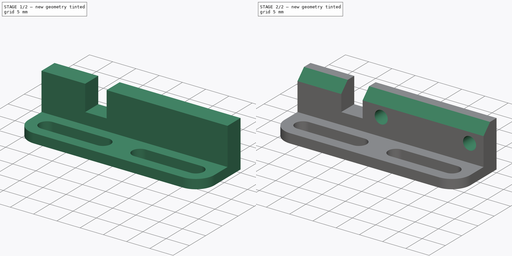
[diagram: build sequence overview — one tinted view per stage of 2, left to right]
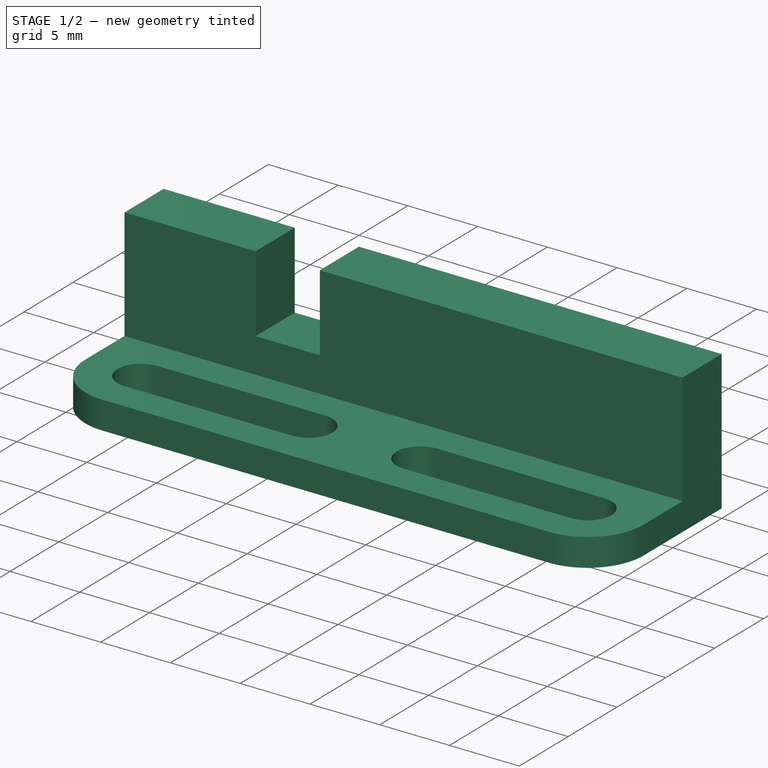
[diagram: stage 1 of 2 — iso view after this stage's code; geometry added in this stage tinted green]
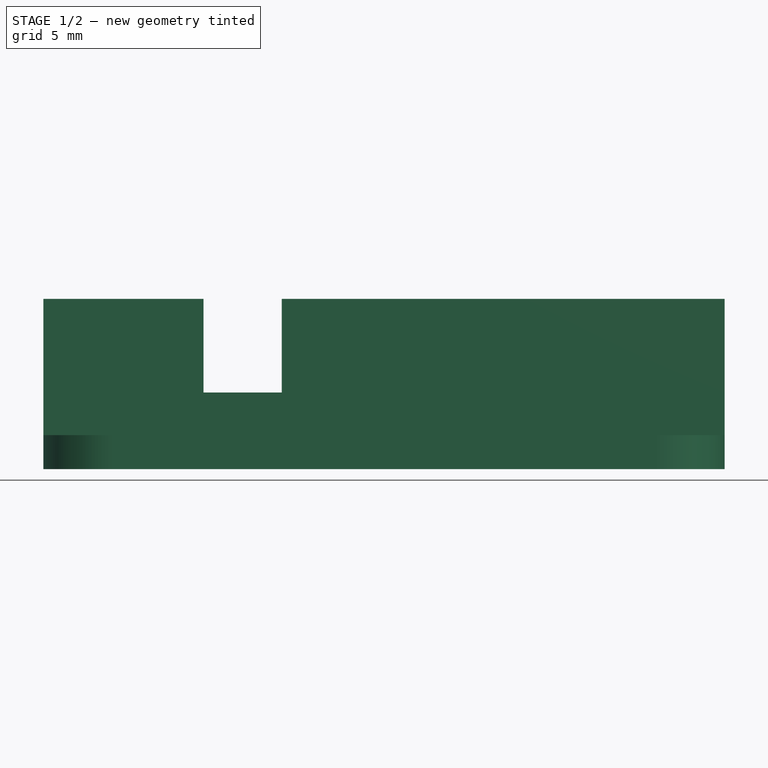
[diagram: stage 1 of 2 — front view after this stage's code; geometry added in this stage tinted green]
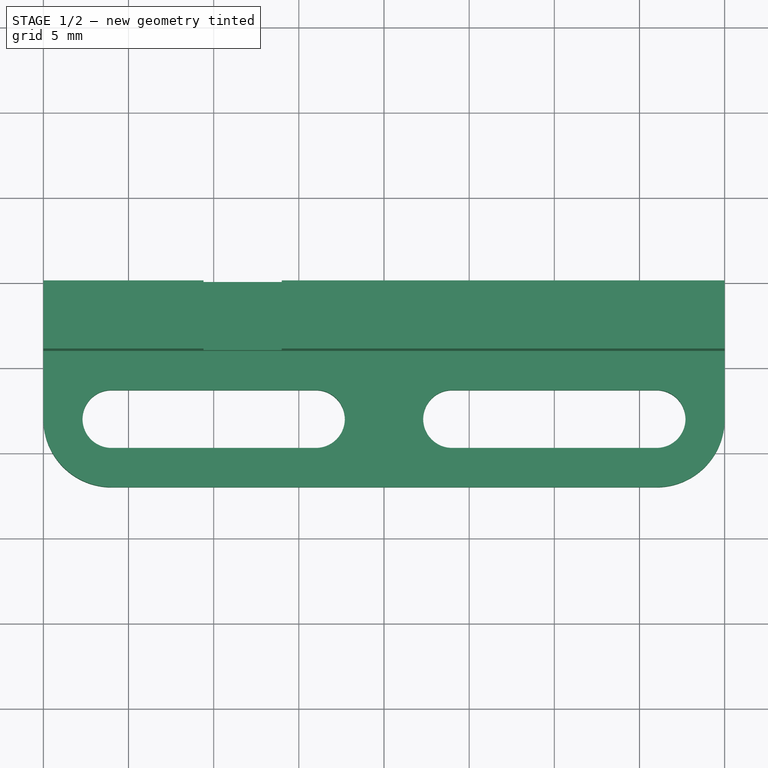
[diagram: stage 1 of 2 — top view after this stage's code; geometry added in this stage tinted green]
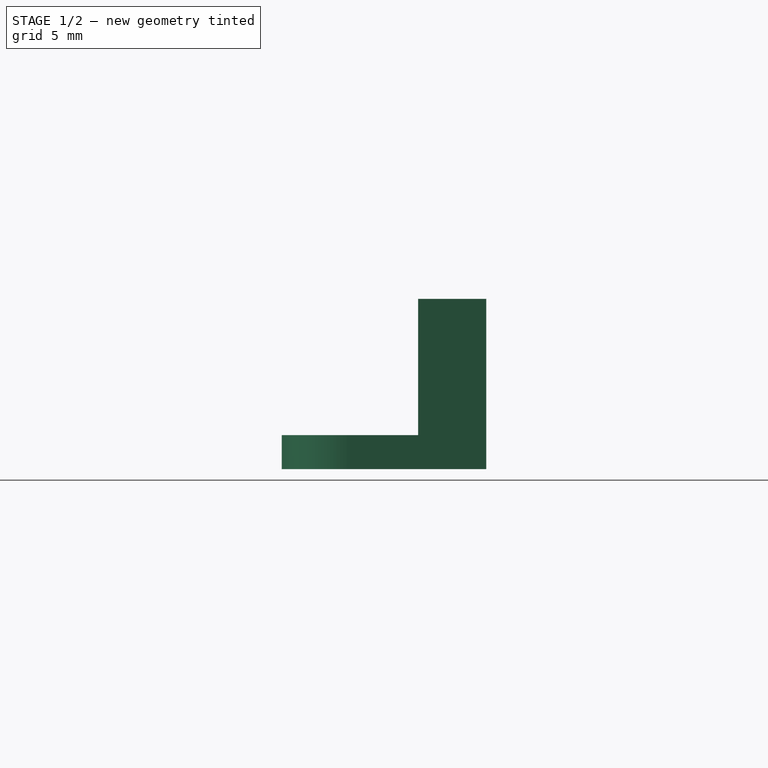
[diagram: stage 1 of 2 — right view after this stage's code; geometry added in this stage tinted green]
FCSTD DOCUMENT  (FreeCAD 0.18.1R)
Label: Endstop Mount
License: All rights reserved
LicenseURL: http://en.wikipedia.org/wiki/All_rights_reserved
objects: Sketcher::SketchObject×3, PartDesign::Pad×2, PartDesign::Pocket×1, PartDesign::Chamfer×1, PartDesign::Body×1, Spreadsheet::Sheet×1
note: 11 computed .brp shape members not serialized (recipe doc carries the construction recipe); baked Part::Feature solids carry a one-line shape summary decoded from their .brp

FEATURE [Sketcher::SketchObject] Sketch  label="Sketch Plate"
  MapMode = 5
  Support = -> [XY_Plane]
  expr: Constraints[28] = Screws.m3tD
  sketch-geometry (14):
    g0: LineSegment StartX=9.5e-14 StartY=-8 StartZ=0 EndX=0 EndY=0 EndZ=0
    g1: LineSegment StartX=0 StartY=0 StartZ=0 EndX=40 EndY=0 EndZ=0
    g2: LineSegment StartX=40 StartY=0 StartZ=0 EndX=40 EndY=-8 EndZ=0
    g3: LineSegment StartX=4 StartY=-12 StartZ=0 EndX=36 EndY=-12 EndZ=0
    g4: ArcOfCircle CenterX=4 CenterY=-8 CenterZ=0 NormalX=0 NormalY=0 NormalZ=1 AngleXU=0 Radius=4 StartAngle=3.14159 EndAngle=4.71239
    g5: ArcOfCircle CenterX=36 CenterY=-8 CenterZ=0 NormalX=0 NormalY=0 NormalZ=1 AngleXU=0 Radius=4 StartAngle=4.71239 EndAngle=6.28319
    g6: ArcOfCircle CenterX=4 CenterY=-8 CenterZ=0 NormalX=0 NormalY=0 NormalZ=1 AngleXU=0 Radius=1.7 StartAngle=1.5708 EndAngle=4.71239
    g7: ArcOfCircle CenterX=16 CenterY=-8 CenterZ=0 NormalX=0 NormalY=0 NormalZ=1 AngleXU=0 Radius=1.7 StartAngle=4.71239 EndAngle=7.85398
    g8: LineSegment StartX=4 StartY=-9.7 StartZ=0 EndX=16 EndY=-9.7 EndZ=0
    g9: LineSegment StartX=4 StartY=-6.3 StartZ=0 EndX=16 EndY=-6.3 EndZ=0
    g10: ArcOfCircle CenterX=36 CenterY=-8 CenterZ=0 NormalX=0 NormalY=0 NormalZ=1 AngleXU=0 Radius=1.7 StartAngle=4.71239 EndAngle=7.85398
    g11: ArcOfCircle CenterX=24 CenterY=-8 CenterZ=0 NormalX=0 NormalY=0 NormalZ=1 AngleXU=0 Radius=1.7 StartAngle=1.5708 EndAngle=4.71239
    g12: LineSegment StartX=36 StartY=-6.3 StartZ=0 EndX=24 EndY=-6.3 EndZ=0
    g13: LineSegment StartX=36 StartY=-9.7 StartZ=0 EndX=24 EndY=-9.7 EndZ=0
  constraints (34):
    c: PointOnObject(g0,g-2)
    c: Coincident(g0,g-1)
    c: Coincident(g0,g1)
    c: PointOnObject(g1,g-1)
    c: Coincident(g1,g2)
    c: Vertical(g2)
    c: Horizontal(g3)
    c: Tangent(g4,g0) = 1.5708
    c: Tangent(g4,g3) = -1.5708
    c: Tangent(g5,g3) = -1.5708
    c: Tangent(g5,g2) = 1.5708
    c: Equal(g4,g5)
    c: Tangent(g6,g9) = 1.5708
    c: Tangent(g6,g8) = -1.5708
    c: Tangent(g8,g7) = -1.5708
    c: Tangent(g9,g7) = 1.5708
    c: Horizontal(g8)
    c: Equal(g6,g7)
    c: Coincident(g6,g4)
    c: Tangent(g10,g13) = 1.5708
    c: Tangent(g10,g12) = -1.5708
    c: Tangent(g12,g11) = -1.5708
    c: Tangent(g13,g11) = 1.5708
    c: Horizontal(g12)
    c: Equal(g10,g11)
    c: Coincident(g10,g5)
    c: Equal(g7,g11)
    c: Equal(g9,g12)
    c: Diameter(g6) = 3.4
    c: Radius(g4) = 4
    c: DistanceY(g4,g0) = 8
    c: Distance(g4,g11) = 20
    c: Distance(g13) = 12
    c: Distance(g1) = 40
FEATURE [PartDesign::Pad] Pad  label="Plate"
  Length = 2
  Length2 = 100
  Profile = -> Sketch
  Type = 0
FEATURE [Sketcher::SketchObject] Sketch001  label="Sketch Mount Pad"
  ExternalGeometry = -> [Pad]
  MapMode = 5
  Placement = pos=(0,0,0) rot=(0,0.707107,0.707107;3.14159rad)
  Support = -> [Pad]
  sketch-geometry (8):
    g0: LineSegment StartX=0 StartY=2 StartZ=0 EndX=-40 EndY=2 EndZ=0
    g1: LineSegment StartX=-40 StartY=2 StartZ=0 EndX=-40 EndY=10 EndZ=0
    g2: LineSegment StartX=-40 StartY=10 StartZ=0 EndX=-14 EndY=10 EndZ=0
    g3: LineSegment StartX=-14 StartY=10 StartZ=0 EndX=-14 EndY=4.5 EndZ=0
    g4: LineSegment StartX=-14 StartY=4.5 StartZ=0 EndX=-9.4 EndY=4.5 EndZ=0
    g5: LineSegment StartX=-9.4 StartY=4.5 StartZ=0 EndX=-9.4 EndY=10 EndZ=0
    g6: LineSegment StartX=-9.4 StartY=10 StartZ=0 EndX=0 EndY=10 EndZ=0
    g7: LineSegment StartX=0 StartY=10 StartZ=0 EndX=0 EndY=2 EndZ=0
  constraints (22):
    c: Coincident(g-3,g0)
    c: Coincident(g0,g-3)
    c: Coincident(g0,g1)
    c: Vertical(g1)
    c: Coincident(g1,g2)
    c: Horizontal(g2)
    c: Coincident(g2,g3)
    c: Vertical(g3)
    c: Coincident(g3,g4)
    c: Horizontal(g4)
    c: Coincident(g4,g5)
    c: Vertical(g5)
    c: Coincident(g5,g6)
    c: PointOnObject(g6,g-2)
    c: Horizontal(g6)
    c: Coincident(g6,g7)
    c: Coincident(g7,g0)
    c: Horizontal(g5,g2)
    c: Distance(g6) = 9.4
    c: Distance(g2) = 26
    c: Distance(g7) = 8
    c: Distance(g4,g0) = 2.5
FEATURE [PartDesign::Pad] Pad001  label="Mount Pad"
  BaseFeature = -> Pad
  Length = 4
  Length2 = 100
  Profile = -> Sketch001
  Reversed = true
  Type = 0
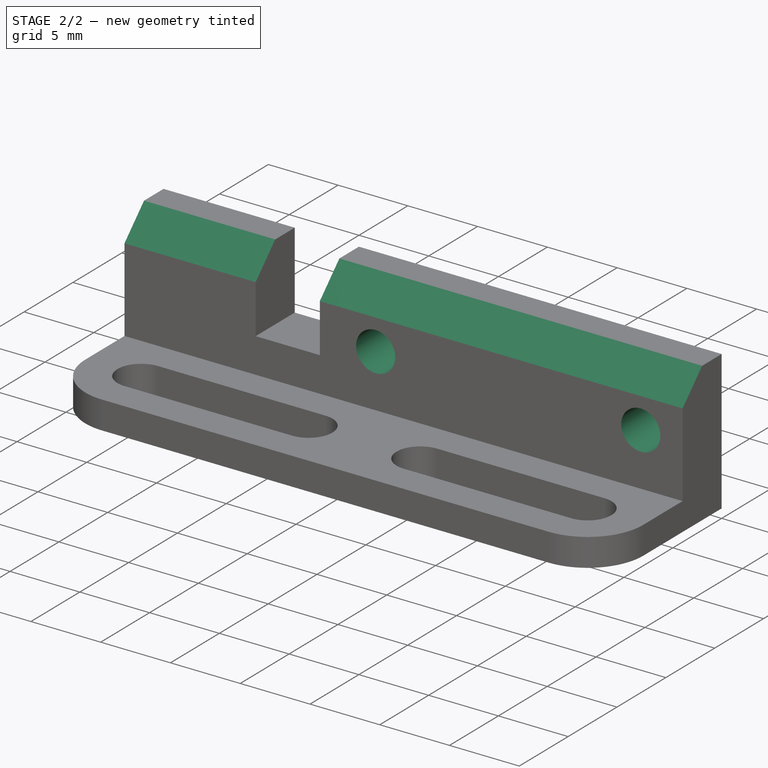
[diagram: stage 2 of 2 — iso view after this stage's code; geometry added in this stage tinted green]
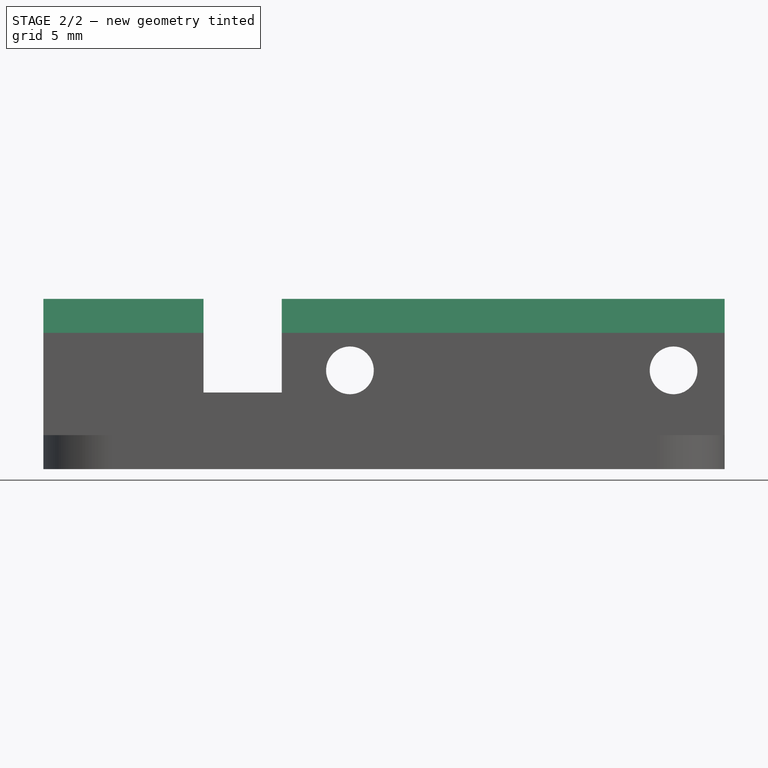
[diagram: stage 2 of 2 — front view after this stage's code; geometry added in this stage tinted green]
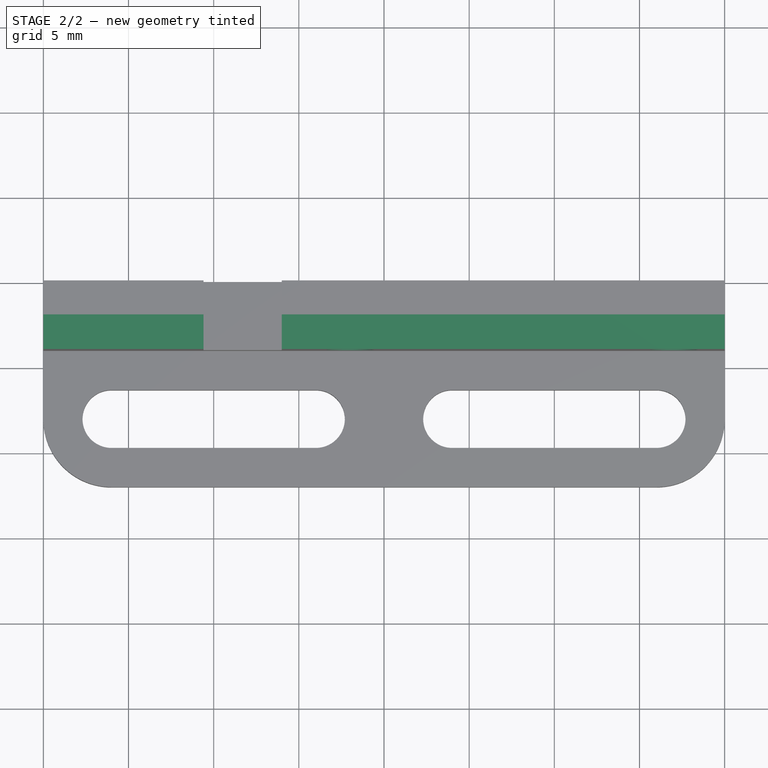
[diagram: stage 2 of 2 — top view after this stage's code; geometry added in this stage tinted green]
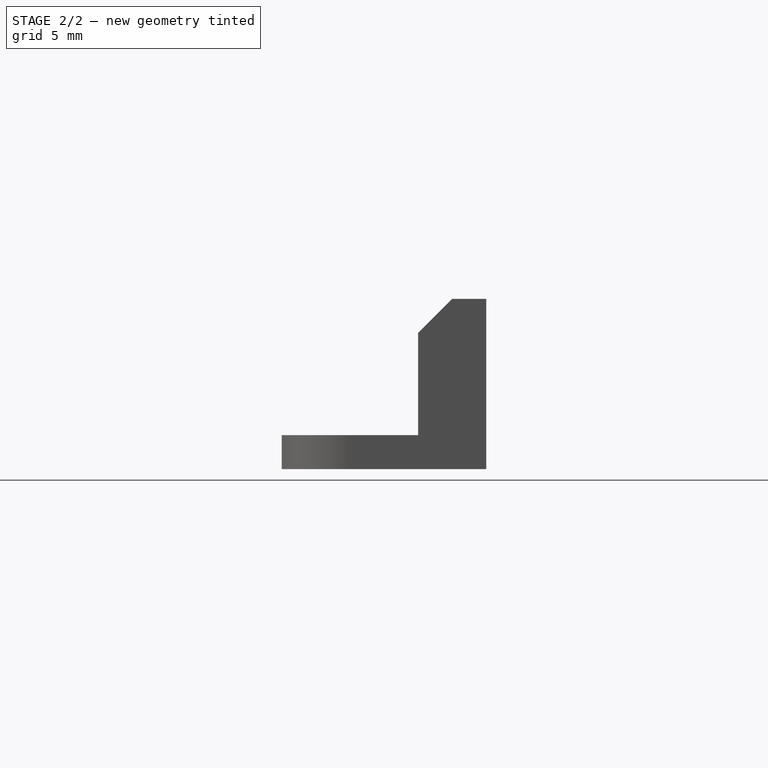
[diagram: stage 2 of 2 — right view after this stage's code; geometry added in this stage tinted green]
FEATURE [Sketcher::SketchObject] Sketch002  label="Sketch Mount Holes"
  ExternalGeometry = -> [Pad001]
  MapMode = 5
  Placement = pos=(0,0,0) rot=(0,0.707107,0.707107;3.14159rad)
  Support = -> [Pad001]
  expr: Constraints[4] = Screws.m3d
  sketch-geometry (2):
    g0: Circle CenterX=-37 CenterY=5.8 CenterZ=0 NormalX=0 NormalY=0 NormalZ=1 AngleXU=0 Radius=1.4
    g1: Circle CenterX=-18 CenterY=5.8 CenterZ=0 NormalX=0 NormalY=0 NormalZ=1 AngleXU=0 Radius=1.4
  constraints (6):
    c: Horizontal(g0,g1)
    c: Equal(g0,g1)
    c: Distance(g0,g1) = 19
    c: Distance(g0,g-3) = 3
    c: Diameter(g0) = 2.8
    c: DistanceY(g-3,g0) = 3.8
FEATURE [PartDesign::Pocket] Pocket  label="Mount Holes"
  BaseFeature = -> Pad001
  Length = 5
  Length2 = 100
  Profile = -> Sketch002
  Type = 0
FEATURE [PartDesign::Chamfer] Chamfer
  Base = -> Pocket [Edge50,Edge51]
  BaseFeature = -> Pocket
  Size = 2
FEATURE [PartDesign::Body] Body  label="Endstop Mount"
  Group = -> [Sketch,Pad,Sketch001,Pad001,Sketch002,Pocket,Chamfer]
  Origin = -> Origin
  Tip = -> Chamfer
FEATURE [Spreadsheet::Sheet] Spreadsheet  label="Screws"
  cells = A1=Screw Type; B1=Length; D1=Diameter Loose; F1=Diameter Tight; A2=M3 Tapping; B2=m3tl; C2(m3tl)==12mm; D2=m3tD; E2(m3tD)==3.4mm; F2=m3td; G2(m3td)==2.8mm; A3=M3; B3=m3l; C3(m3l)==30mm; D3=m3D; E3(m3D)==3.2mm; F3=m3d; G3(m3d)==2.8mm
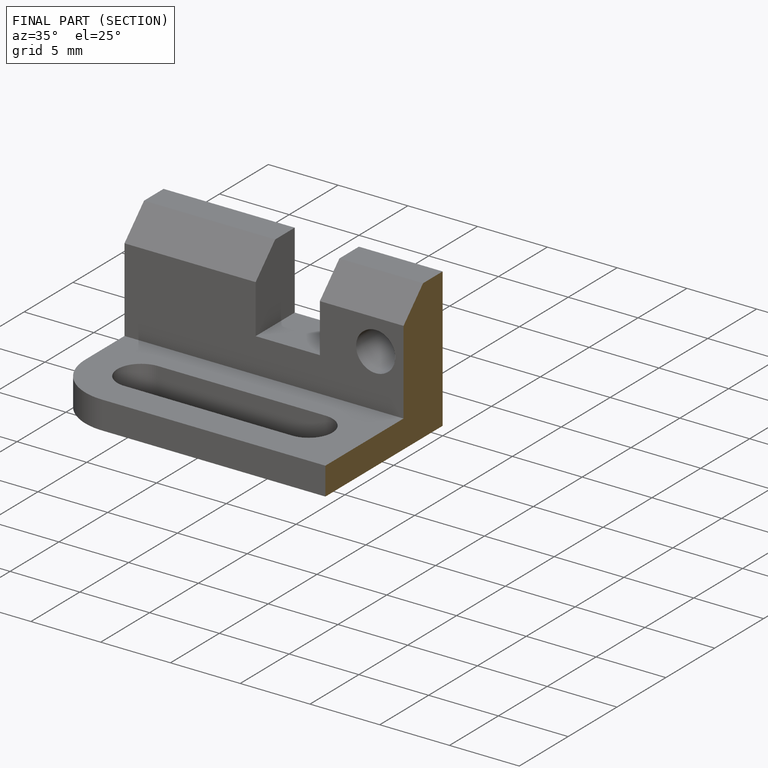
[diagram: finished part — half-section view (interior)]
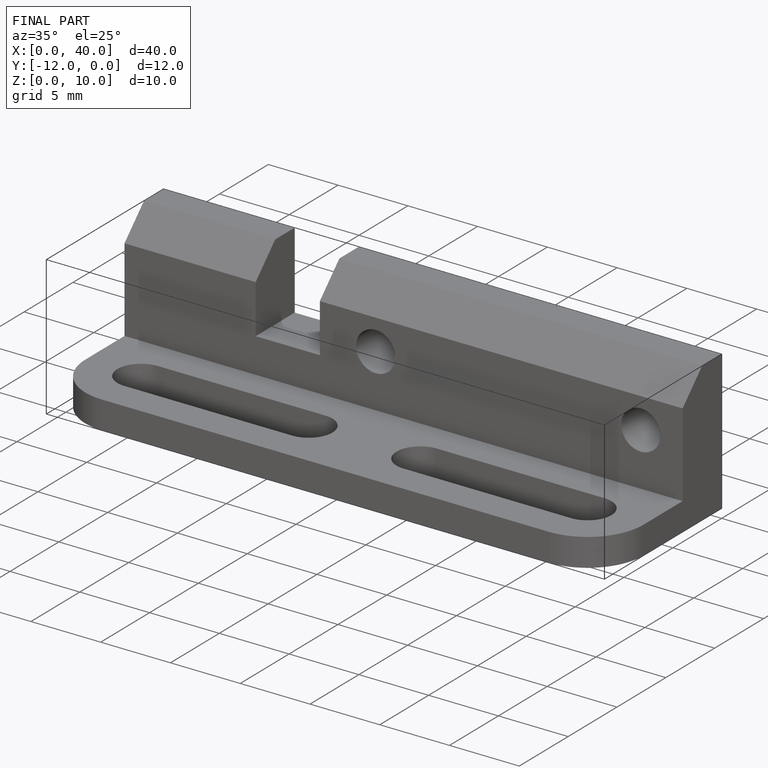
[diagram: finished part — iso view with bounding-box wireframe]
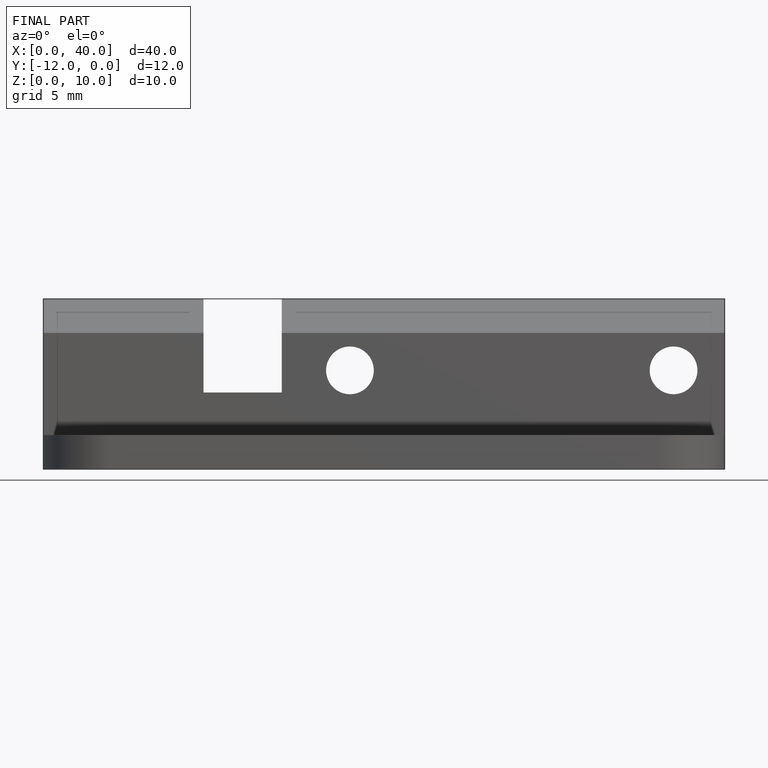
[diagram: finished part — front view with bounding-box wireframe]
